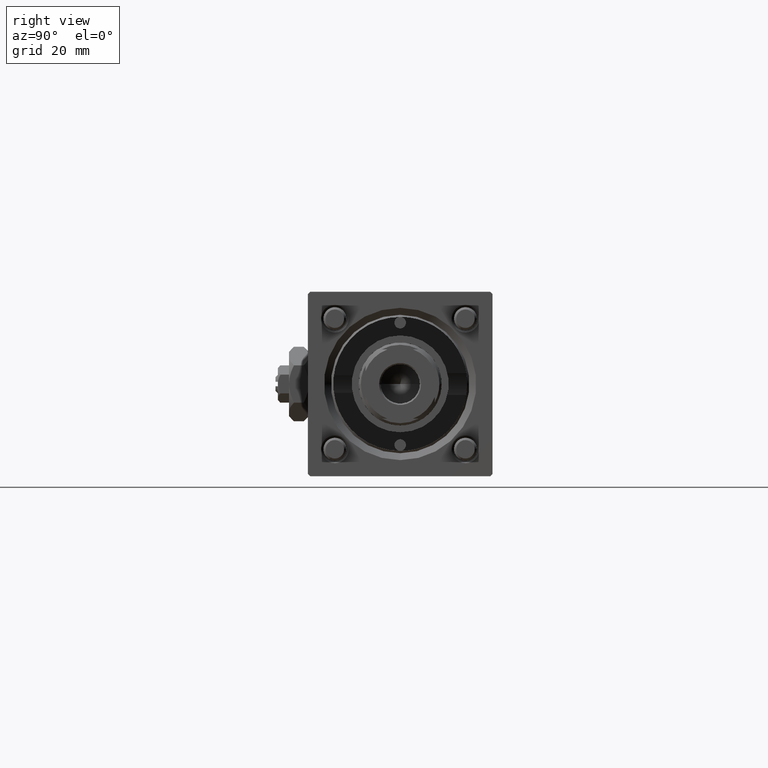
[diagram: clean part render]
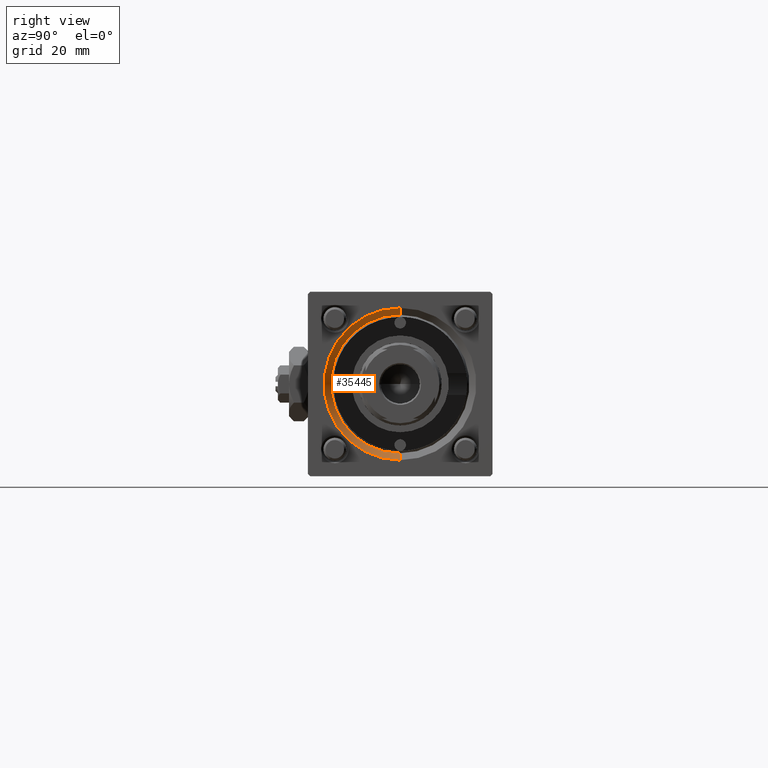
[diagram: same view with one face highlighted and labeled with its STEP entity id]
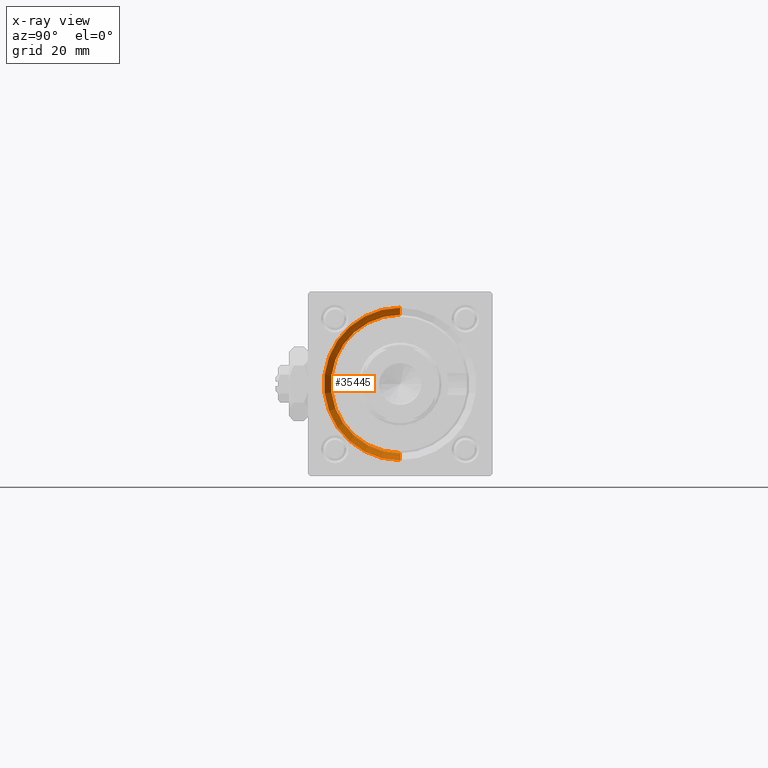
[diagram: x-ray of the same camera — body ghosted, the highlighted face saturated]
A machine part, right view. The second image highlights one B-rep face of the part: STEP entity #35445.
The next image is the same camera in x-ray: the body ghosted, the highlighted face saturated — about 0% of this face is hidden behind the body in this view.
In plain terms, the highlighted conical surface has half-angle 45 deg.
Its self-contained STEP definition (entity closure, byte-faithful):
#785 = ORIENTED_EDGE ( 'NONE', *, *, #48926, .F. ) ;
#6931 = EDGE_CURVE ( 'NONE', #20461, #30977, #28215, .T. ) ;
#9906 = CARTESIAN_POINT ( 'NONE',  ( 119.0000000000000142, 0.000000000000000000, -16.50000000000001421 ) ) ;
#10165 = AXIS2_PLACEMENT_3D ( 'NONE', #20555, #19973, #16081 ) ;
#10684 = CARTESIAN_POINT ( 'NONE',  ( 119.0000000000000142, 2.020667218593134678E-15, 16.50000000000001421 ) ) ;
#12881 = EDGE_LOOP ( 'NONE', ( #38444, #52973, #53718, #785 ) ) ;
#16081 = DIRECTION ( 'NONE',  ( 0.000000000000000000, 0.000000000000000000, 1.000000000000000000 ) ) ;
#19973 = DIRECTION ( 'NONE',  ( 1.000000000000000000, 0.000000000000000000, 0.000000000000000000 ) ) ;
#20461 = VERTEX_POINT ( 'NONE', #9906 ) ;
#20555 = CARTESIAN_POINT ( 'NONE',  ( 117.5000000000000000, 0.000000000000000000, 0.000000000000000000 ) ) ;
#21187 = VERTEX_POINT ( 'NONE', #37025 ) ;
#21820 = VERTEX_POINT ( 'NONE', #51078 ) ;
#23106 = CARTESIAN_POINT ( 'NONE',  ( 117.5000000000000000, 0.000000000000000000, -15.00000000000000000 ) ) ;
#27469 = VECTOR ( 'NONE', #31153, 1000.000000000000114 ) ;
#28215 = CIRCLE ( 'NONE', #32027, 16.50000000000001421 ) ;
#29654 = DIRECTION ( 'NONE',  ( 0.7071067811865474617, 8.659560562354932858E-17, 0.7071067811865474617 ) ) ;
#30324 = CARTESIAN_POINT ( 'NONE',  ( 119.0000000000000142, 0.000000000000000000, 0.000000000000000000 ) ) ;
#30977 = VERTEX_POINT ( 'NONE', #10684 ) ;
#31153 = DIRECTION ( 'NONE',  ( 0.7071067811865474617, 0.000000000000000000, -0.7071067811865474617 ) ) ;
#32027 = AXIS2_PLACEMENT_3D ( 'NONE', #30324, #57679, #54073 ) ;
#32764 = DIRECTION ( 'NONE',  ( 1.000000000000000000, 0.000000000000000000, 0.000000000000000000 ) ) ;
#33818 = LINE ( 'NONE', #34702, #50835 ) ;
#34295 = EDGE_CURVE ( 'NONE', #21187, #30977, #33818, .T. ) ;
#34702 = CARTESIAN_POINT ( 'NONE',  ( 117.5000000000000000, 1.836970198721029589E-15, 15.00000000000000000 ) ) ;
#35445 = ADVANCED_FACE ( 'NONE', ( #45330 ), #48044, .F. ) ;
#37025 = CARTESIAN_POINT ( 'NONE',  ( 117.5000000000000000, 1.836970198721029589E-15, 15.00000000000000000 ) ) ;
#37238 = CARTESIAN_POINT ( 'NONE',  ( 117.5000000000000000, 0.000000000000000000, 0.000000000000000000 ) ) ;
#38444 = ORIENTED_EDGE ( 'NONE', *, *, #44538, .F. ) ;
#44538 = EDGE_CURVE ( 'NONE', #21187, #21820, #51051, .T. ) ;
#45330 = FACE_OUTER_BOUND ( 'NONE', #12881, .T. ) ;
#48044 = CONICAL_SURFACE ( 'NONE', #49005, 15.00000000000000000, 0.7853981633974482790 ) ;
#48926 = EDGE_CURVE ( 'NONE', #21820, #20461, #54039, .T. ) ;
#49005 = AXIS2_PLACEMENT_3D ( 'NONE', #37238, #32764, #50905 ) ;
#50835 = VECTOR ( 'NONE', #29654, 1000.000000000000114 ) ;
#50905 = DIRECTION ( 'NONE',  ( 0.000000000000000000, 0.000000000000000000, -1.000000000000000000 ) ) ;
#51051 = CIRCLE ( 'NONE', #10165, 15.00000000000000000 ) ;
#51078 = CARTESIAN_POINT ( 'NONE',  ( 117.5000000000000000, 0.000000000000000000, -15.00000000000000000 ) ) ;
#52973 = ORIENTED_EDGE ( 'NONE', *, *, #34295, .T. ) ;
#53718 = ORIENTED_EDGE ( 'NONE', *, *, #6931, .F. ) ;
#54039 = LINE ( 'NONE', #23106, #27469 ) ;
#54073 = DIRECTION ( 'NONE',  ( 0.000000000000000000, 0.000000000000000000, 1.000000000000000000 ) ) ;
#57679 = DIRECTION ( 'NONE',  ( -1.000000000000000000, -0.000000000000000000, -0.000000000000000000 ) ) ;